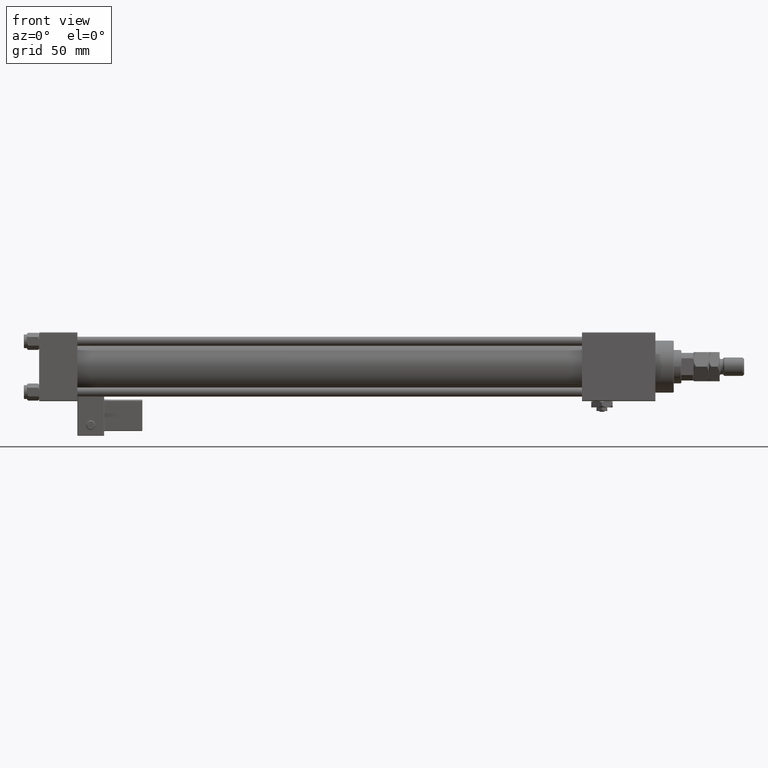
[diagram: clean part render]
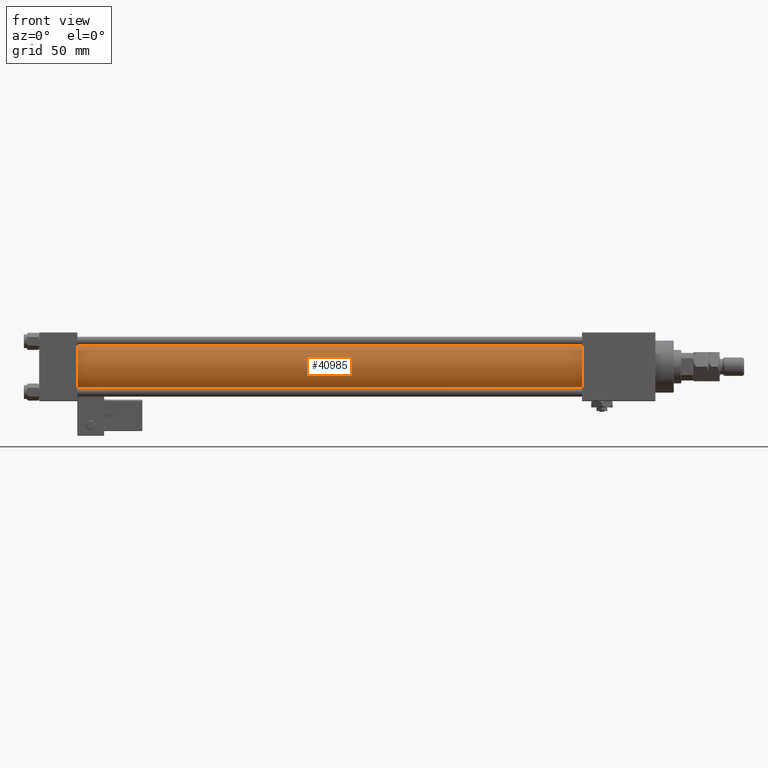
[diagram: same view with one face highlighted and labeled with its STEP entity id]
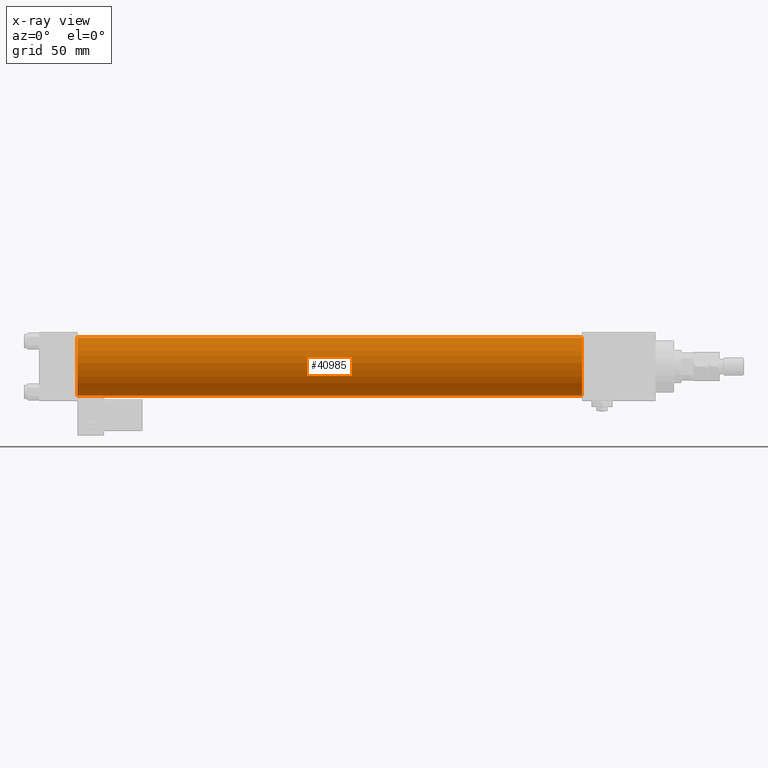
[diagram: x-ray of the same camera — body ghosted, the highlighted face saturated]
A machine part, front view. The second image highlights one B-rep face of the part: STEP entity #40985.
The next image is the same camera in x-ray: the body ghosted, the highlighted face saturated — about 0% of this face is hidden behind the body in this view.
In plain terms, the highlighted cylindrical surface (edge-blend (fillet) strip) has radius 19 mm, axis along (-1, -0, -0).
Its self-contained STEP definition (entity closure, byte-faithful):
#1348 = DIRECTION ( 'NONE',  ( -1.000000000000000000, -0.000000000000000000, -0.000000000000000000 ) ) ;
#2702 = AXIS2_PLACEMENT_3D ( 'NONE', #49765, #11186, #7241 ) ;
#4256 = DIRECTION ( 'NONE',  ( -1.000000000000000000, -0.000000000000000000, -0.000000000000000000 ) ) ;
#5924 = CARTESIAN_POINT ( 'NONE',  ( 25.00000000000002132, -2.602085213965210642E-15, 19.00000000000000000 ) ) ;
#6114 = LINE ( 'NONE', #32018, #19629 ) ;
#7241 = DIRECTION ( 'NONE',  ( 0.000000000000000000, 0.000000000000000000, 1.000000000000000000 ) ) ;
#7988 = CARTESIAN_POINT ( 'NONE',  ( 355.0000000000000568, -2.602085213965210642E-15, 19.00000000000000000 ) ) ;
#11072 = CARTESIAN_POINT ( 'NONE',  ( 355.0000000000000568, -2.752562955852396712E-16, -19.00000000000000000 ) ) ;
#11186 = DIRECTION ( 'NONE',  ( -1.000000000000000000, -0.000000000000000000, -0.000000000000000000 ) ) ;
#12360 = DIRECTION ( 'NONE',  ( 1.000000000000000000, 0.000000000000000000, 0.000000000000000000 ) ) ;
#14181 = EDGE_CURVE ( 'NONE', #29992, #39446, #43321, .T. ) ;
#15404 = FACE_OUTER_BOUND ( 'NONE', #47527, .T. ) ;
#15493 = CIRCLE ( 'NONE', #54180, 19.00000000000000000 ) ;
#16326 = EDGE_CURVE ( 'NONE', #46659, #44408, #15493, .T. ) ;
#17219 = CARTESIAN_POINT ( 'NONE',  ( 355.0000000000000568, -2.602085213965210642E-15, 19.00000000000000000 ) ) ;
#19629 = VECTOR ( 'NONE', #1348, 1000.000000000000000 ) ;
#22686 = VECTOR ( 'NONE', #4256, 1000.000000000000000 ) ;
#29992 = VERTEX_POINT ( 'NONE', #7988 ) ;
#32018 = CARTESIAN_POINT ( 'NONE',  ( 355.0000000000000568, -2.752562955852396712E-16, -19.00000000000000000 ) ) ;
#32191 = DIRECTION ( 'NONE',  ( 0.000000000000000000, 0.000000000000000000, 1.000000000000000000 ) ) ;
#32504 = AXIS2_PLACEMENT_3D ( 'NONE', #43027, #12360, #51495 ) ;
#34770 = ORIENTED_EDGE ( 'NONE', *, *, #46585, .T. ) ;
#36411 = DIRECTION ( 'NONE',  ( 1.000000000000000000, -0.000000000000000000, 0.000000000000000000 ) ) ;
#37092 = ORIENTED_EDGE ( 'NONE', *, *, #16326, .T. ) ;
#37147 = EDGE_CURVE ( 'NONE', #39446, #44408, #6114, .T. ) ;
#37356 = CYLINDRICAL_SURFACE ( 'NONE', #2702, 19.00000000000000000 ) ;
#39446 = VERTEX_POINT ( 'NONE', #11072 ) ;
#40985 = ADVANCED_FACE ( 'NONE', ( #15404 ), #37356, .T. ) ;
#43027 = CARTESIAN_POINT ( 'NONE',  ( 355.0000000000000568, -2.602085213965210642E-15, 0.000000000000000000 ) ) ;
#43321 = CIRCLE ( 'NONE', #32504, 19.00000000000000000 ) ;
#43931 = LINE ( 'NONE', #17219, #22686 ) ;
#44408 = VERTEX_POINT ( 'NONE', #48537 ) ;
#46585 = EDGE_CURVE ( 'NONE', #29992, #46659, #43931, .T. ) ;
#46659 = VERTEX_POINT ( 'NONE', #5924 ) ;
#47527 = EDGE_LOOP ( 'NONE', ( #51927, #51247, #34770, #37092 ) ) ;
#48537 = CARTESIAN_POINT ( 'NONE',  ( 25.00000000000002132, -2.752562955852396712E-16, -19.00000000000000000 ) ) ;
#49765 = CARTESIAN_POINT ( 'NONE',  ( 355.0000000000000568, -2.602085213965210642E-15, 0.000000000000000000 ) ) ;
#51247 = ORIENTED_EDGE ( 'NONE', *, *, #14181, .F. ) ;
#51495 = DIRECTION ( 'NONE',  ( 0.000000000000000000, 0.000000000000000000, -1.000000000000000000 ) ) ;
#51927 = ORIENTED_EDGE ( 'NONE', *, *, #37147, .F. ) ;
#53610 = CARTESIAN_POINT ( 'NONE',  ( 25.00000000000002132, -2.602085213965210642E-15, 0.000000000000000000 ) ) ;
#54180 = AXIS2_PLACEMENT_3D ( 'NONE', #53610, #36411, #32191 ) ;